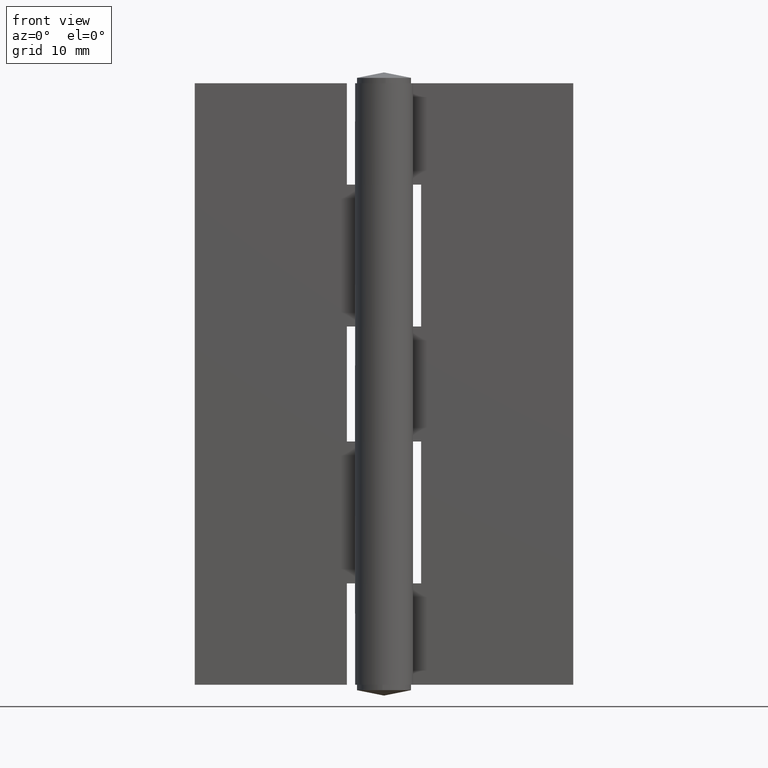
[diagram: clean part render]
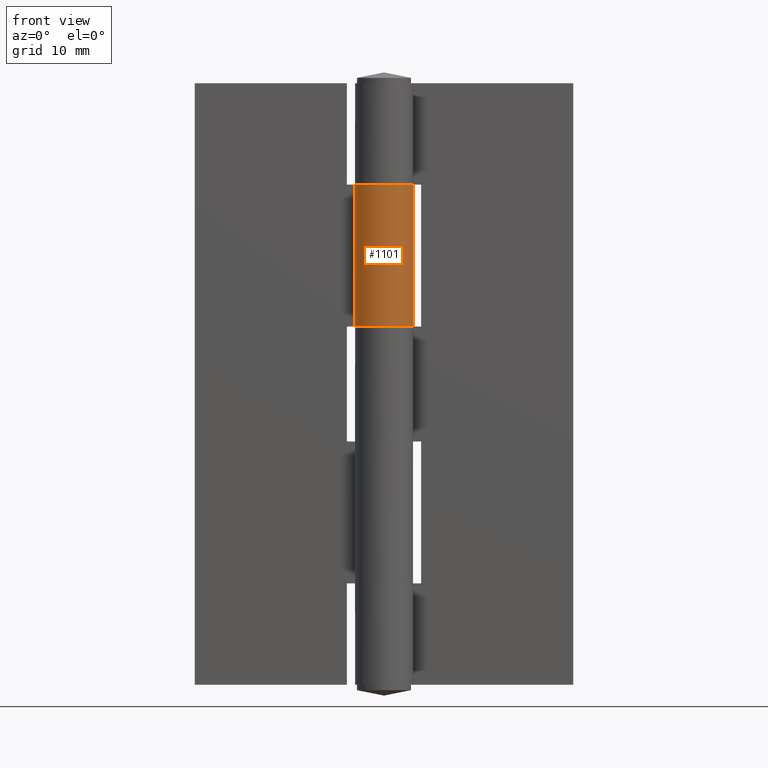
[diagram: same view with one face highlighted and labeled with its STEP entity id]
A machine part, front view. The second image highlights one B-rep face of the part: STEP entity #1101.
In plain terms, the highlighted face is a freeform B-spline surface patch.
Its self-contained STEP definition (entity closure, byte-faithful):
#509=CARTESIAN_POINT('',(-3.462298398462500,2.549998000000000,74.0));
#510=VERTEX_POINT('',#509);
#511=CARTESIAN_POINT('',(0.0,4.299999000000000,74.0));
#512=VERTEX_POINT('',#511);
#513=CARTESIAN_POINT('',(-3.462298398462500,2.549998000000000,74.0));
#514=CARTESIAN_POINT('',(-3.630972152087379,2.321016393396103,74.000000000000099));
#515=CARTESIAN_POINT('',(-3.961122790243635,1.764742644830304,73.999999999999801));
#516=CARTESIAN_POINT('',(-4.233571860726499,0.917341659508303,74.000000000000412));
#517=CARTESIAN_POINT('',(-4.325457935897652,0.020692569539862,73.999999999999304));
#518=CARTESIAN_POINT('',(-4.258386198523978,-0.759095078925297,74.000000000001805));
#519=CARTESIAN_POINT('',(-4.055260852213869,-1.482205847814139,73.999999999997826));
#520=CARTESIAN_POINT('',(-3.735866480909901,-2.177862401674689,73.999999999999559));
#521=CARTESIAN_POINT('',(-3.293894144590753,-2.805953180987257,74.000000000001975));
#522=CARTESIAN_POINT('',(-2.762555258023079,-3.315319859416805,73.999999999999744));
#523=CARTESIAN_POINT('',(-2.212507604384337,-3.706468647778397,74.000000000000028));
#524=CARTESIAN_POINT('',(-1.487796290647738,-4.071783233480886,74.000000000000185));
#525=CARTESIAN_POINT('',(-0.624174373659322,-4.289859342750797,73.999999999999758));
#526=CARTESIAN_POINT('',(0.277211540827580,-4.315118637956558,74.000000000000668));
#527=CARTESIAN_POINT('',(1.034868716885617,-4.196974692107116,73.999999999998295));
#528=CARTESIAN_POINT('',(1.759079683117820,-3.947110156350117,74.000000000002402));
#529=CARTESIAN_POINT('',(2.430017382375347,-3.576608546542092,73.999999999997968));
#530=CARTESIAN_POINT('',(3.034353994707500,-3.080564162400818,74.000000000000810));
#531=CARTESIAN_POINT('',(3.480070667196333,-2.552130195323950,73.999999999999943));
#532=CARTESIAN_POINT('',(3.843220432434024,-1.965739551004224,74.0));
#533=CARTESIAN_POINT('',(4.173655181272526,-1.191233259254171,74.000000000000057));
#534=CARTESIAN_POINT('',(4.327884407715440,-0.282022602366225,73.999999999999957));
#535=CARTESIAN_POINT('',(4.268572877478688,0.767865885762487,74.000000000000014));
#536=CARTESIAN_POINT('',(3.991899064040343,1.726540161678390,73.999999999999915));
#537=CARTESIAN_POINT('',(3.486173778758832,2.566013164376739,74.000000000000156));
#538=CARTESIAN_POINT('',(2.898569400265270,3.208826571153868,73.999999999999730));
#539=CARTESIAN_POINT('',(2.154341784765826,3.771871430795271,74.000000000000085));
#540=CARTESIAN_POINT('',(1.152612758209707,4.197807892441151,74.000000000002373));
#541=CARTESIAN_POINT('',(0.374224996355135,4.300097943569623,73.999999999993292));
#542=CARTESIAN_POINT('',(0.0,4.299999000000000,74.0));
#543=B_SPLINE_CURVE_WITH_KNOTS('',3,(#513,#514,#515,#516,#517,#518,#519,#520,#521,#522,#523,#524,#525,#526,#527,#528,#529,#530,#531,#532,#533,#534,#535,#536,#537,#538,#539,#540,#541,#542),.UNSPECIFIED.,.F.,.U.,(4,1,1,1,1,1,1,1,1,1,1,1,1,1,1,1,1,1,1,1,1,1,1,1,1,1,1,4),(0.000000511706673,0.853212052039410,1.931036334099069,2.649590099845405,3.547758518782398,4.266307820141481,4.895037087207307,5.838044732415511,6.556566581301620,7.095492607198510,7.858934849365044,8.981666440487290,9.745109673451045,10.553473282604561,11.271991326160350,12.035417163734380,12.843754897638490,13.607197139689861,14.101200967393590,14.909560178975040,16.122117979962411,16.840656468534071,18.053091161922669,19.086013784494931,19.759645946492562,20.657822469364870,21.870380270516279,22.993049629024650),.UNSPECIFIED.);
#544=EDGE_CURVE('',#510,#512,#543,.T.);
#732=CARTESIAN_POINT('',(0.0,4.299999000000000,53.0));
#733=VERTEX_POINT('',#732);
#734=CARTESIAN_POINT('',(-3.462298398462500,2.549998000000000,53.0));
#735=VERTEX_POINT('',#734);
#736=CARTESIAN_POINT('',(0.0,4.299999000000000,53.0));
#737=CARTESIAN_POINT('',(0.284405139132181,4.300035486782186,53.000000000000021));
#738=CARTESIAN_POINT('',(0.778368808408288,4.250787615088961,52.999999999999773));
#739=CARTESIAN_POINT('',(1.631546395747197,4.013394360551332,53.000000000000469));
#740=CARTESIAN_POINT('',(2.381774694939670,3.622381955717781,52.999999999999062));
#741=CARTESIAN_POINT('',(3.117255395745801,3.003171294732383,53.000000000000199));
#742=CARTESIAN_POINT('',(3.586670431484051,2.413871384829840,53.000000000001137));
#743=CARTESIAN_POINT('',(3.957204304321865,1.727540121167530,52.999999999999112));
#744=CARTESIAN_POINT('',(4.201828466037902,1.032616096203584,52.999999999998273));
#745=CARTESIAN_POINT('',(4.328103291856723,0.169301777466925,53.000000000000917));
#746=CARTESIAN_POINT('',(4.273507059454738,-0.687331134125509,52.999999999997691));
#747=CARTESIAN_POINT('',(4.047648699243291,-1.529239435891759,53.000000000003837));
#748=CARTESIAN_POINT('',(3.696879881670903,-2.245701519250583,52.999999999997868));
#749=CARTESIAN_POINT('',(3.174266992761069,-2.942851247967896,53.000000000002153));
#750=CARTESIAN_POINT('',(2.578698532430464,-3.474866463255460,52.999999999996213));
#751=CARTESIAN_POINT('',(1.881516914840827,-3.888828867418589,53.000000000006182));
#752=CARTESIAN_POINT('',(1.264745481540291,-4.127191291558400,52.999999999999190));
#753=CARTESIAN_POINT('',(0.591021047942574,-4.275965106534577,52.999999999999318));
#754=CARTESIAN_POINT('',(-0.218785386324969,-4.329537962902519,53.000000000000810));
#755=CARTESIAN_POINT('',(-1.099044876733111,-4.193404720839465,52.999999999998579));
#756=CARTESIAN_POINT('',(-1.980855357132760,-3.848560493133606,53.000000000004960));
#757=CARTESIAN_POINT('',(-2.753702639826735,-3.351975843091505,52.999999999976907));
#758=CARTESIAN_POINT('',(-3.351860955778104,-2.734914474534009,53.000000000009003));
#759=CARTESIAN_POINT('',(-3.821879086752728,-2.020428674842348,52.999999999999481));
#760=CARTESIAN_POINT('',(-4.124053689797732,-1.314343503956923,52.999999999999339));
#761=CARTESIAN_POINT('',(-4.289947452414033,-0.519917836843573,53.000000000000192));
#762=CARTESIAN_POINT('',(-4.317733321631050,0.305828131578721,52.999999999999552));
#763=CARTESIAN_POINT('',(-4.184228847621372,1.108501228922234,53.000000000001322));
#764=CARTESIAN_POINT('',(-3.885237610259566,1.894800279129115,52.999999999997023));
#765=CARTESIAN_POINT('',(-3.622104328116439,2.333070315344332,53.000000000003872));
#766=CARTESIAN_POINT('',(-3.462298398462500,2.549998000000000,53.0));
#767=B_SPLINE_CURVE_WITH_KNOTS('',3,(#736,#737,#738,#739,#740,#741,#742,#743,#744,#745,#746,#747,#748,#749,#750,#751,#752,#753,#754,#755,#756,#757,#758,#759,#760,#761,#762,#763,#764,#765,#766),.UNSPECIFIED.,.F.,.U.,(4,1,1,1,1,1,1,1,1,1,1,1,1,1,1,1,1,1,1,1,1,1,1,1,1,1,1,1,4),(0.000000511355505,0.853212051730207,1.481971561202094,2.649590099636292,3.368131629944422,4.356113379385498,4.895037087854753,5.703406300312409,6.556566581208688,7.499678133203272,8.263121365709562,9.161297888637494,9.879855989470185,10.867838154384550,11.541378969652531,12.304828871461529,12.843754897323130,13.607197139496201,14.729928730640911,15.493371963589681,16.436483515258260,17.469321059616419,18.053091162051331,18.996202714043221,19.759645946611851,20.478191021183068,21.466196641914141,22.184745805671561,22.993049629024728),.UNSPECIFIED.);
#768=EDGE_CURVE('',#733,#735,#767,.T.);
#1061=CARTESIAN_POINT('',(-3.462298398462500,2.549998000000000,74.0));
#1062=CARTESIAN_POINT('',(-3.462298398462500,2.549998000000000,53.0));
#1063=QUASI_UNIFORM_CURVE('',1,(#1061,#1062),.UNSPECIFIED.,.F.,.U.);
#1064=EDGE_CURVE('',#510,#735,#1063,.T.);
#1069=CARTESIAN_POINT('',(-3.365215074465379,2.676812937541763,74.525000000000020));
#1070=CARTESIAN_POINT('',(-3.365215074465379,2.676812937541763,52.461874999999999));
#1071=CARTESIAN_POINT('',(-6.811999049815415,-1.656388396626057,74.525000000000034));
#1072=CARTESIAN_POINT('',(-6.811999049815415,-1.656388396626057,52.461875000000006));
#1073=CARTESIAN_POINT('',(-1.760386952462199,-3.923141315017959,74.525000000000020));
#1074=CARTESIAN_POINT('',(-1.760386952462199,-3.923141315017959,52.461874999999999));
#1075=CARTESIAN_POINT('',(3.291225144891017,-6.189894233409862,74.525000000000034));
#1076=CARTESIAN_POINT('',(3.291225144891017,-6.189894233409862,52.461875000000006));
#1077=CARTESIAN_POINT('',(4.236827443772238,-0.734365856844113,74.525000000000020));
#1078=CARTESIAN_POINT('',(4.236827443772238,-0.734365856844113,52.461874999999999));
#1079=CARTESIAN_POINT('',(5.182429742653461,4.721162519721638,74.525000000000034));
#1080=CARTESIAN_POINT('',(5.182429742653461,4.721162519721638,52.461875000000006));
#1081=CARTESIAN_POINT('',(-0.337374111629727,4.286744535052449,74.525000000000020));
#1082=CARTESIAN_POINT('',(-0.337374111629727,4.286744535052449,52.461874999999999));
#1090=(BOUNDED_SURFACE()B_SPLINE_SURFACE(1,2,((#1069,#1071,#1073,#1075,#1077,#1079,#1081),(#1070,#1072,#1074,#1076,#1078,#1080,#1082)),.UNSPECIFIED.,.F.,.F.,.U.)B_SPLINE_SURFACE_WITH_KNOTS((2,2),(3,2,2,3),(0.0,22.063125000000021),(0.0,8.419989889201030,16.839979778402061,25.259969667603091),.UNSPECIFIED.)GEOMETRIC_REPRESENTATION_ITEM()RATIONAL_B_SPLINE_SURFACE(((1.0,0.613366643455859,1.0,0.613366643455859,1.0,0.613366643455859,1.0),(1.0,0.613366643455859,1.0,0.613366643455859,1.0,0.613366643455859,1.0)))REPRESENTATION_ITEM('')SURFACE());
#1091=ORIENTED_EDGE('',*,*,#544,.F.);
#1092=ORIENTED_EDGE('',*,*,#1064,.T.);
#1093=ORIENTED_EDGE('',*,*,#768,.F.);
#1094=CARTESIAN_POINT('',(0.0,4.299999000000000,74.0));
#1095=CARTESIAN_POINT('',(0.0,4.299999000000000,53.0));
#1096=QUASI_UNIFORM_CURVE('',1,(#1094,#1095),.UNSPECIFIED.,.F.,.U.);
#1097=EDGE_CURVE('',#512,#733,#1096,.T.);
#1098=ORIENTED_EDGE('',*,*,#1097,.F.);
#1099=EDGE_LOOP('',(#1091,#1092,#1093,#1098));
#1100=FACE_OUTER_BOUND('',#1099,.T.);
#1101=ADVANCED_FACE('',(#1100),#1090,.T.);